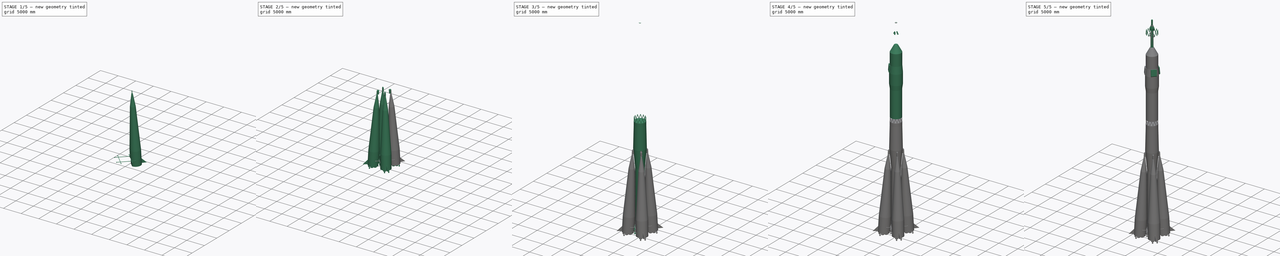
[diagram: build sequence overview — one tinted view per stage of 5, left to right]
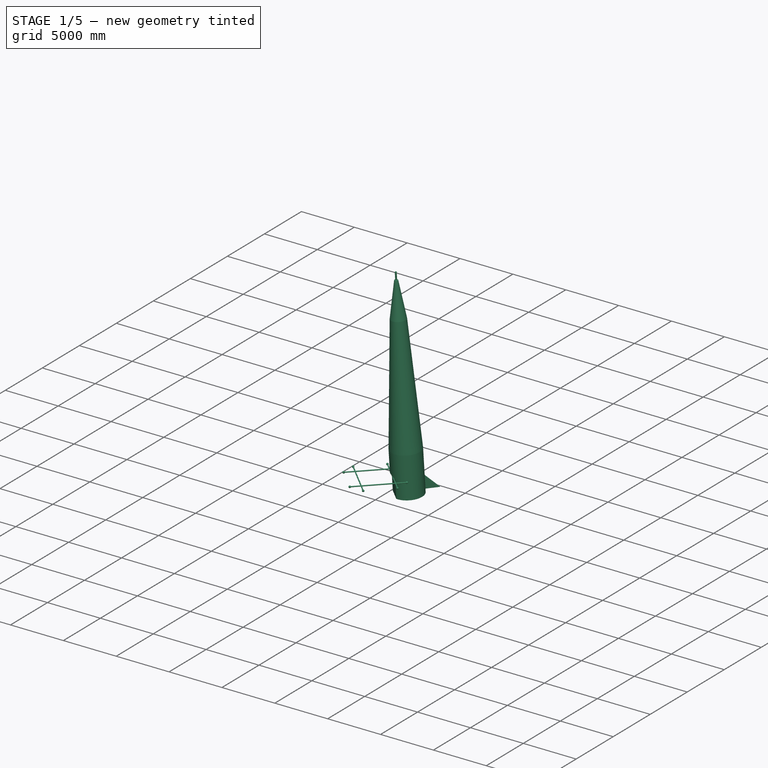
[diagram: stage 1 of 5 — iso view after this stage's code; geometry added in this stage tinted green]
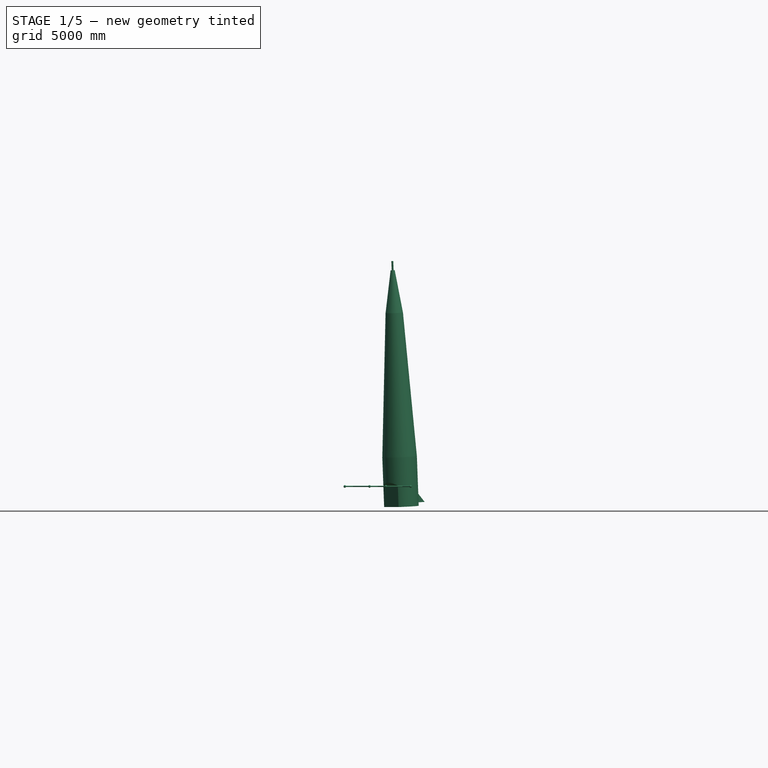
[diagram: stage 1 of 5 — front view after this stage's code; geometry added in this stage tinted green]
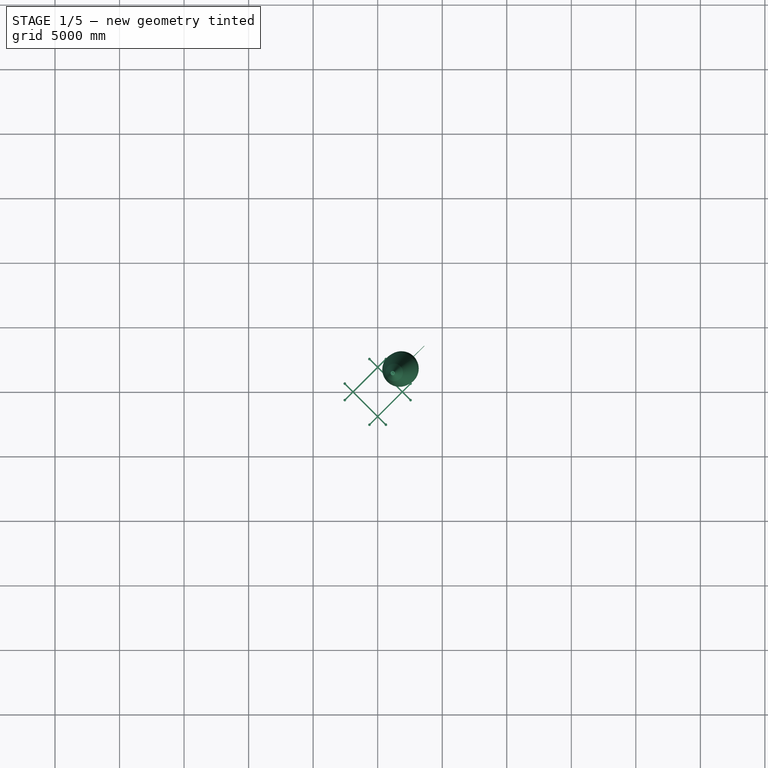
[diagram: stage 1 of 5 — top view after this stage's code; geometry added in this stage tinted green]
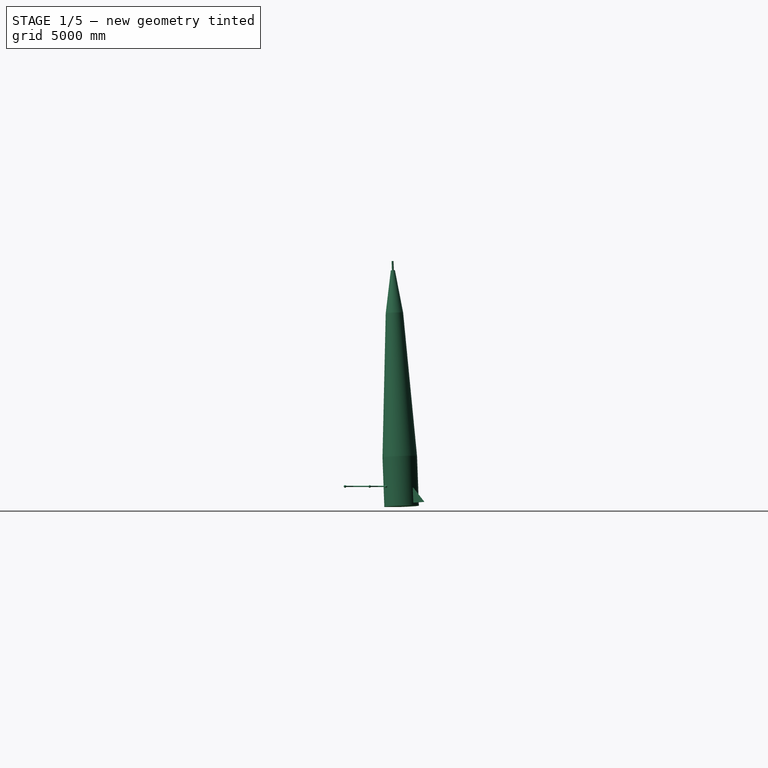
[diagram: stage 1 of 5 — right view after this stage's code; geometry added in this stage tinted green]
FCSTD DOCUMENT  (FreeCAD 0.19R23578 (Git))
Label: SOYUZ
License: All rights reserved
LicenseURL: http://en.wikipedia.org/wiki/All_rights_reserved
objects: Part::Cylinder×18, Part::Feature×15, Part::Cone×12, Part::MultiFuse×11, Part::FeaturePython×9, Part::Compound×8, Part::Fillet×6, Part::Chamfer×5, Part::Sphere×5, Part::Box×4, Part::RegularPolygon×2, PartDesign::ShapeBinder×2, Part::Plane×2, Part::Cut×2, Image::ImagePlane×1, Part::Part2DObjectPython×1, PartDesign::Plane×1, Sketcher::SketchObject×1, PartDesign::AdditivePipe×1, PartDesign::Body×1, +3 more types
note: 110 computed .brp shape members not serialized (recipe doc carries the construction recipe); baked Part::Feature solids carry a one-line shape summary decoded from their .brp

FEATURE [Part::Cylinder] Cylinder013
  Angle = 360
  AttacherType = Attacher::AttachEngine3D
  Height = 3850
  Radius = 1340
FEATURE [Part::Cone] Cone010
  Angle = 360
  AttacherType = Attacher::AttachEngine3D
  Height = 11160
  Placement = pos=(-9.43e-13,0,3850) rot=(0,0,1;0rad)
  Radius1 = 1340
  Radius2 = 675
FEATURE [Part::Cone] Cone011
  Angle = 360
  AttacherType = Attacher::AttachEngine3D
  Height = 3300
  Placement = pos=(0,0,15010) rot=(0,0,1;0rad)
  Radius1 = 675
  Radius2 = 160
FEATURE [Part::Cylinder] Cylinder014
  Angle = 360
  AttacherType = Attacher::AttachEngine3D
  Height = 720
  Placement = pos=(0,0,18310) rot=(0,0,1;0rad)
  Radius = 75
FEATURE [Part::Box] Box001  label="Cube001"
  AttacherType = Attacher::AttachEngine3D
  Height = 1900
  Length = 260
  Placement = pos=(0,-800,0) rot=(0,0,1;0rad)
  Width = 1600
FEATURE [Part::Chamfer] Chamfer003
  Base = -> Box001
  Edges = 1 edges r=250: [Edge6]
  Placement = pos=(-1350,0,0) rot=(0,0,1;0rad)
FEATURE [Part::Fillet] Fillet004001001002
  Base = -> Cylinder014
  Edges = 1 edges r=25: [Edge1]
FEATURE [Part::Cut] Cut
  Base = -> Cylinder013
  Tool = -> Chamfer003
FEATURE [Part::MultiFuse] Fusion003003007
  Placement = pos=(1838.48,1838.48,-48240) rot=(0.026125,-0.063071,0.997667;0.787051rad)
  Shapes = -> [Cut,Fillet004001001002,Cone011,Cone010]
FEATURE [Part::Feature] Array003001
  Placement = pos=(1838.48,1838.48,-48200) rot=(0,0,1;0rad)
  shape: bbox 1780 x 1780 x 500 mm, 16 faces, 4 solids (baked)
FEATURE [Part::Feature] Fusion003003004001
  Placement = pos=(2885,2177.89,-48240) rot=(0,0,-1;0.785398rad)
  shape: bbox 300 x 300 x 750 mm, 5 faces (baked)
FEATURE [Part::Box] Box002  label="Cube002"
  AttacherType = Attacher::AttachEngine3D
  Height = 1170
  Length = 1170
  Placement = pos=(0,-40,0) rot=(0,0,1;0rad)
  Width = 40
FEATURE [Part::Chamfer] Chamfer004
  Base = -> Box002
  Edges = 1 edges r=1150: [Edge6]
  Placement = pos=(2769.04,2769.04,-47960.1) rot=(0.026125,-0.063071,0.997667;0.787051rad)
FEATURE [Part::Cylinder] Cylinder018
  Angle = 360
  AttacherType = Attacher::AttachEngine3D
  Height = 2250
  Placement = pos=(0,0,0) rot=(0,1,0;1.5708rad)
  Radius = 50
FEATURE [Part::Sphere] Sphere005
  Angle1 = -90
  Angle2 = 90
  Angle3 = 360
  AttacherType = Attacher::AttachEngine3D
  Placement = pos=(2250,0,0) rot=(0,0,1;0rad)
  Radius = 100
FEATURE [Part::MultiFuse] Fusion003003004001005
  Shapes = -> [Cylinder018,Sphere005]
FEATURE [Part::Feature] Fusion003003004001005001
  Placement = pos=(0,0,0) rot=(0,-1,0;3.14159rad)
  shape: bbox 2350 x 200 x 200 mm, 3 faces (baked)
FEATURE [Part::MultiFuse] Fusion003003004001005002
  Placement = pos=(954.594,-954.594,-46700) rot=(0,0,1;0.785398rad)
  Shapes = -> [Fusion003003004001005001,Fusion003003004001005]
FEATURE [Part::FeaturePython] Array003005  # Draft array (typed FeaturePython)
  Angle = 360
  ArrayType = 1
  Axis = (0,0,1)
  Base = -> Fusion003003004001005002
  Center = (0,0,1)
  Count = 4
  ExpandArray = false
  Fuse = true
  IntervalAxis = (0,0,0)
  IntervalX = (50,0,0)
  IntervalY = (0,50,0)
  IntervalZ = (0,0,50)
  NumberCircles = 3
  NumberPolar = 4
  NumberX = 2
  NumberY = 2
  NumberZ = 1
  PlacementList = 4 placements: [(954.594,-954.594,-46700),(954.594,954.594,-46700),(-954.594,954.594,-46700),(-954.594,-954.594,-46700)]
  RadialDistance = 50
  ScaleList = (4) [(1,1,1),(1,1,1),(1,1,1),(1,1,1)]
  Symmetry = 1
  TangentialDistance = 25
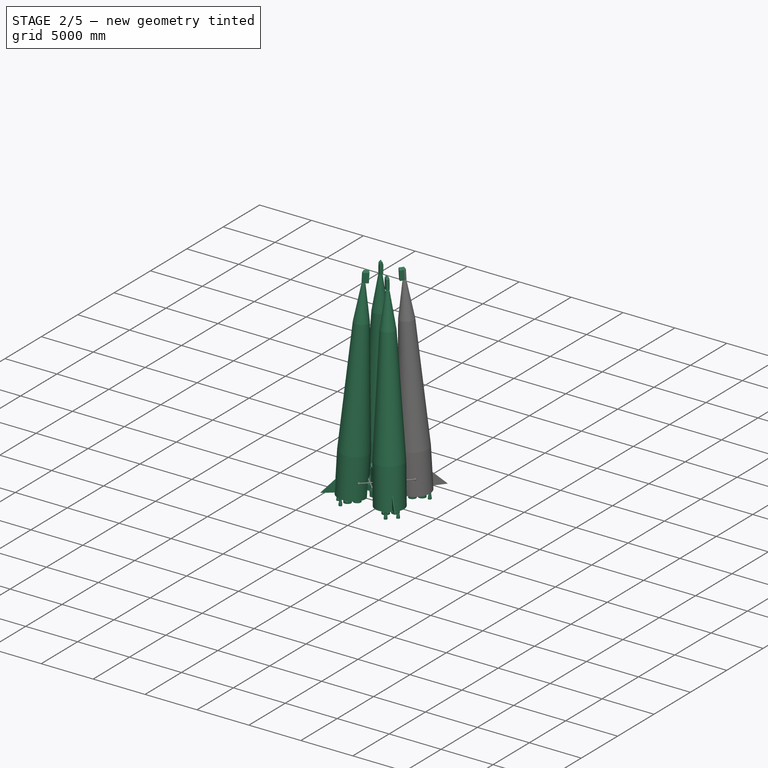
[diagram: stage 2 of 5 — iso view after this stage's code; geometry added in this stage tinted green]
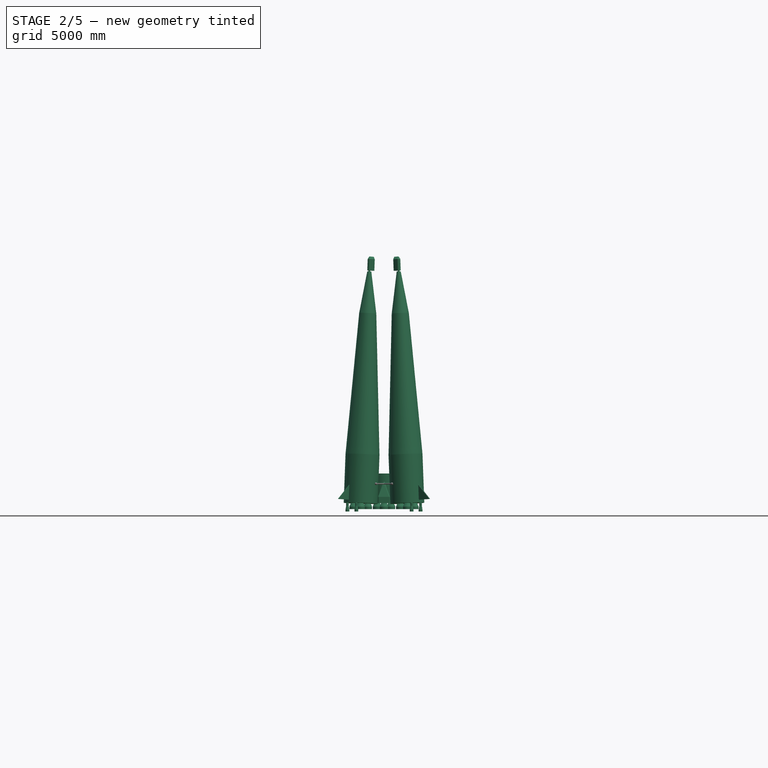
[diagram: stage 2 of 5 — front view after this stage's code; geometry added in this stage tinted green]
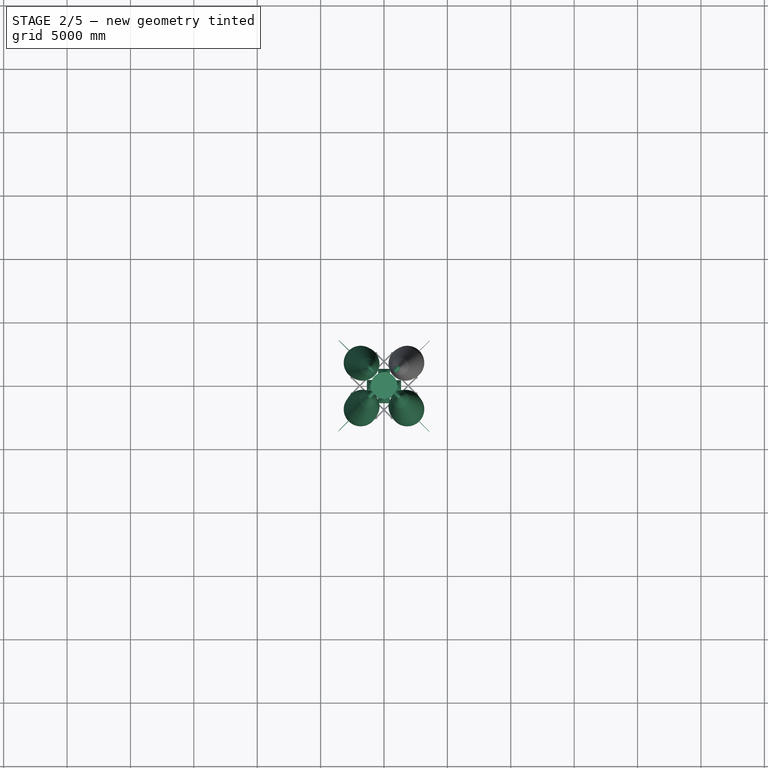
[diagram: stage 2 of 5 — top view after this stage's code; geometry added in this stage tinted green]
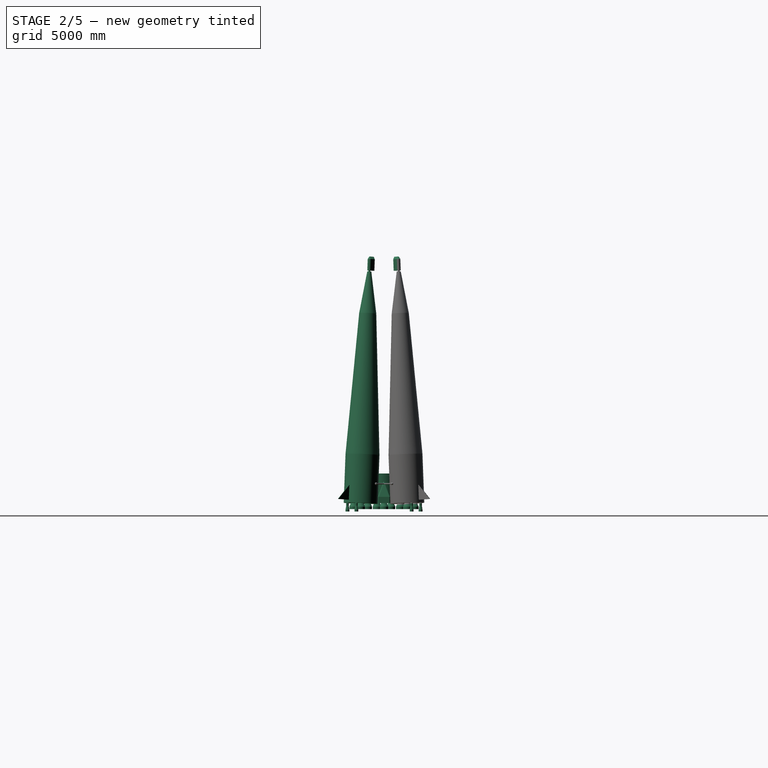
[diagram: stage 2 of 5 — right view after this stage's code; geometry added in this stage tinted green]
FEATURE [Part::Cylinder] Cylinder009
  Angle = 360
  AttacherType = Attacher::AttachEngine3D
  Height = 2350
  Placement = pos=(5.62e-12,0,-45890) rot=(0,1,0;3.14159rad)
  Radius = 1050
FEATURE [Part::Feature] Loft001
  shape: bbox 935 x 600 x 1700 mm, 12 faces (baked)
FEATURE [Part::Fillet] Fillet004
  Base = -> Loft001
  Edges = 4 edges r=50: [Edge2,Edge6,Edge16,Edge19]
  Placement = pos=(0,-1050,-48240) rot=(0,0,1;0rad)
FEATURE [Part::Feature] Fillet004001
  Placement = pos=(2.57e-13,1050,-48240) rot=(0,0,1;3.14159rad)
  shape: bbox 1092 x 763.3 x 1732 mm, 18 faces (baked)
FEATURE [Part::Feature] Fillet004001001
  Placement = pos=(-1050,2.33e-13,-48240) rot=(0,0,-1;1.5708rad)
  shape: bbox 763.3 x 1092 x 1732 mm, 18 faces (baked)
FEATURE [Part::Feature] Fillet004001001001
  Placement = pos=(1050,-2.331e-13,-48240) rot=(0,0,1;1.5708rad)
  shape: bbox 763.3 x 1092 x 1732 mm, 18 faces (baked)
FEATURE [Part::MultiFuse] Fusion003
  Shapes = -> [Fillet004001001001,Fillet004001001,Fillet004001,Fillet004,Cylinder009]
FEATURE [Part::Refine] Fusion003001
  Placement = pos=(0,0,0) rot=(0,0,1;0.785398rad)
  Source = -> Fusion003
FEATURE [Part::Cone] Cone007
  Angle = 360
  AttacherType = Attacher::AttachEngine3D
  Height = 300
  Placement = pos=(5.908e-12,0,0) rot=(0,1,0;3.14159rad)
  Radius1 = 220
  Radius2 = 340
FEATURE [Part::Cylinder] Cylinder010
  Angle = 360
  AttacherType = Attacher::AttachEngine3D
  Height = 200
  Placement = pos=(0,0,-500) rot=(0,0,1;0rad)
  Radius = 340
FEATURE [Part::MultiFuse] Fusion003003006
  Placement = pos=(-550,0,0) rot=(0,0,1;0rad)
  Shapes = -> [Cone007,Cylinder010]
FEATURE [Part::FeaturePython] Array003  label="Array005"  # Draft array (typed FeaturePython)
  Angle = 360
  ArrayType = 1
  Axis = (0,0,1)
  Base = -> Fusion003003006
  Center = (0,0,1)
  Count = 4
  ExpandArray = false
  Fuse = true
  IntervalAxis = (0,0,0)
  IntervalX = (50,0,0)
  IntervalY = (0,50,0)
  IntervalZ = (0,0,50)
  NumberCircles = 3
  NumberPolar = 4
  NumberX = 2
  NumberY = 2
  NumberZ = 1
  Placement = pos=(0,0,-48200) rot=(0,0,1;0rad)
  PlacementList = 4 placements: [(-550,0,0),(-1.13687e-13,-550,0),(550,-6.73556e-14,0),(1.13687e-13,550,0)]
  RadialDistance = 50
  ScaleList = (4) [(1,1,1),(1,1,1),(1,1,1),(1,1,1)]
  Symmetry = 1
  TangentialDistance = 25
FEATURE [Part::Feature] Fusion003003004001001
  Placement = pos=(2177.89,2885,-48240) rot=(0,0,-1;0.785398rad)
  shape: bbox 300 x 300 x 750 mm, 5 faces (baked)
FEATURE [Part::MultiFuse] Fusion003003004001002
  Shapes = -> [Fusion003003004001001,Chamfer004,Fusion003003004001,Array003001,Fusion003003007]
FEATURE [Part::Cylinder] Cylinder015
  Angle = 180
  AttacherType = Attacher::AttachEngine3D
  Height = 1100
  Placement = pos=(0,0,0) rot=(0,0,1;1.5708rad)
  Radius = 160
FEATURE [Part::Box] Box003  label="Cube003"
  AttacherType = Attacher::AttachEngine3D
  Height = 1100
  Length = 400
  Placement = pos=(0,-160,0) rot=(0,0,1;0rad)
  Width = 320
FEATURE [Part::MultiFuse] Fusion003003004001004
  Shapes = -> [Box003,Cylinder015]
FEATURE [Part::Chamfer] Chamfer005
  Base = -> Fusion003003004001004
  Edges = 1 edges: [Edge6 r1=200 r2=120]
FEATURE [Part::Cylinder] Cylinder016
  Angle = 360
  AttacherType = Attacher::AttachEngine3D
  Height = 900
  Radius = 76
FEATURE [Part::Cut] Cut001
  Base = -> Chamfer005
  Placement = pos=(1157.92,1157.92,-29875.2) rot=(-0.026175,-0.010842,0.999599;3.92671rad)
  Tool = -> Cylinder016
FEATURE [Part::FeaturePython] Array003003  # Draft array (typed FeaturePython)
  Angle = 360
  ArrayType = 1
  Axis = (0,0,1)
  Base = -> Cut001
  Center = (0,0,1)
  Count = 4
  ExpandArray = false
  Fuse = true
  IntervalAxis = (0,0,0)
  IntervalX = (50,0,0)
  IntervalY = (0,50,0)
  IntervalZ = (0,0,50)
  NumberCircles = 3
  NumberPolar = 4
  NumberX = 2
  NumberY = 2
  NumberZ = 1
  PlacementList = 4 placements: [(1157.92,1157.92,-29875.2),(-1157.92,1157.92,-29875.2),(-1157.92,-1157.92,-29875.2),(1157.92,-1157.92,-29875.2)]
  RadialDistance = 50
  ScaleList = (4) [(1,1,1),(1,1,1),(1,1,1),(1,1,1)]
  Symmetry = 1
  TangentialDistance = 25
FEATURE [Part::FeaturePython] Array003004  # Draft array (typed FeaturePython)
  Angle = 360
  ArrayType = 1
  Axis = (0,0,1)
  Base = -> Fusion003003004001002
  Center = (0,0,1)
  Count = 4
  ExpandArray = false
  Fuse = true
  IntervalAxis = (0,0,0)
  IntervalX = (50,0,0)
  IntervalY = (0,50,0)
  IntervalZ = (0,0,50)
  NumberCircles = 3
  NumberPolar = 4
  NumberX = 2
  NumberY = 2
  NumberZ = 1
  PlacementList = 4 placements: [(0,0,0),(0,0,0),(0,0,0),(0,0,0)]
  RadialDistance = 50
  ScaleList = (4) [(1,1,1),(1,1,1),(1,1,1),(1,1,1)]
  Symmetry = 1
  TangentialDistance = 25
FEATURE [Part::Compound] Compound009  label="MODULE 3"
  Links = -> [Array003004,Array003005]
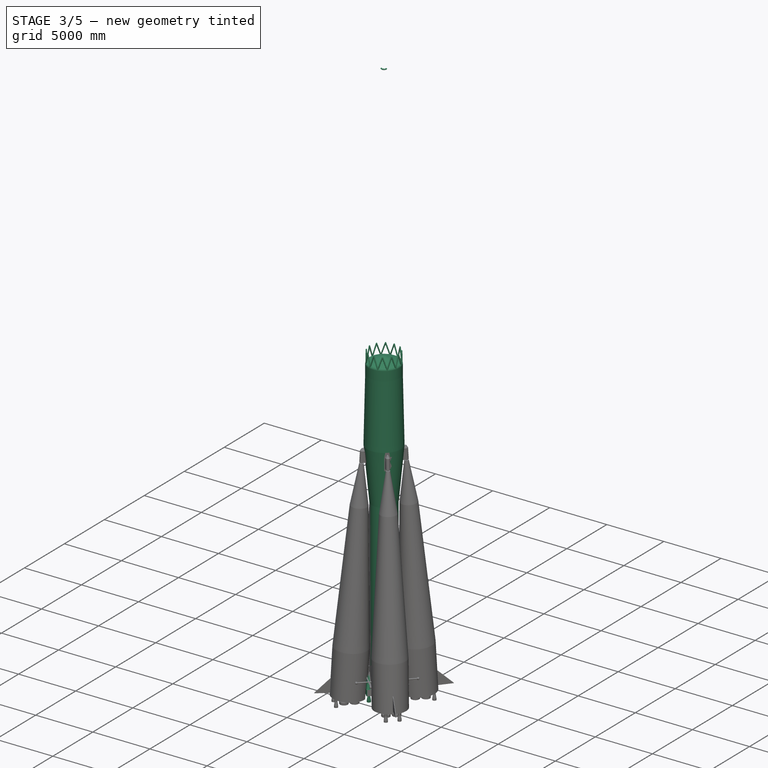
[diagram: stage 3 of 5 — iso view after this stage's code; geometry added in this stage tinted green]
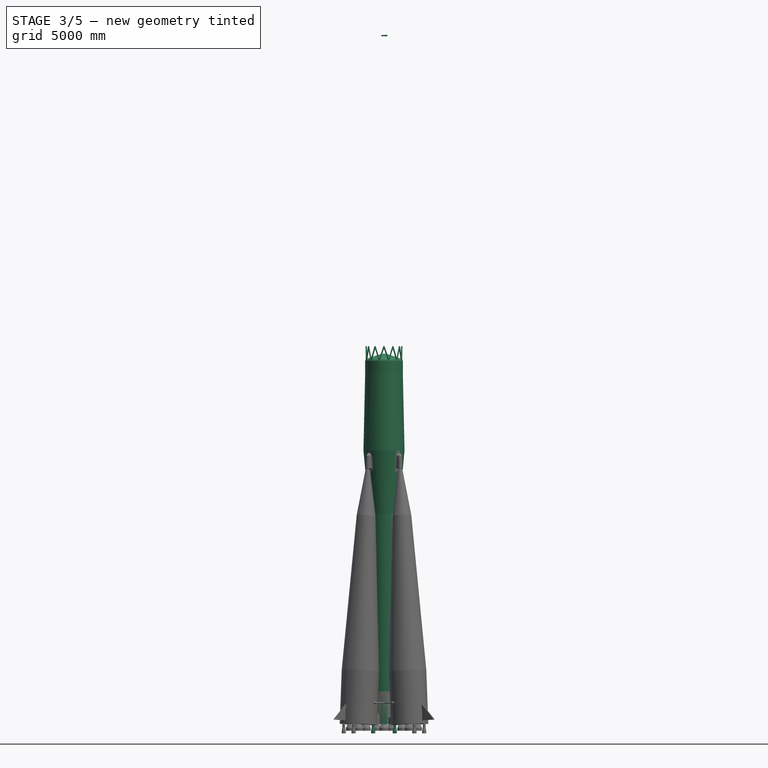
[diagram: stage 3 of 5 — front view after this stage's code; geometry added in this stage tinted green]
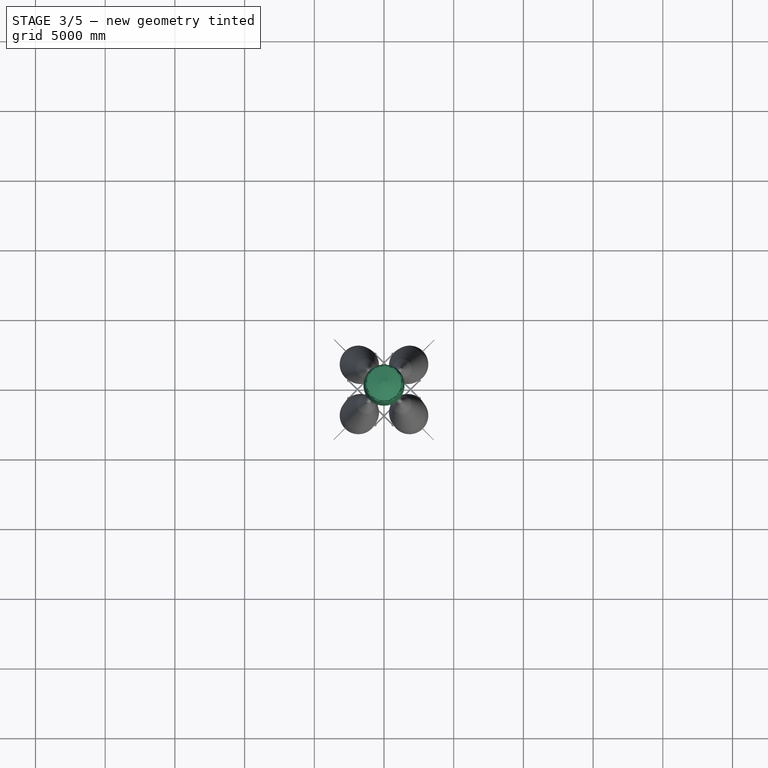
[diagram: stage 3 of 5 — top view after this stage's code; geometry added in this stage tinted green]
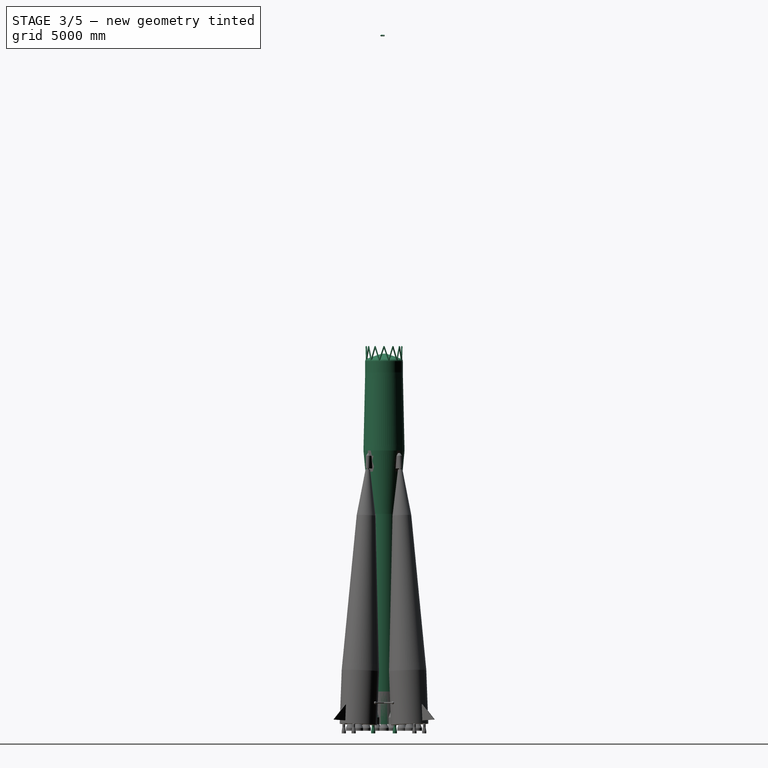
[diagram: stage 3 of 5 — right view after this stage's code; geometry added in this stage tinted green]
FEATURE [PartDesign::Body] Body
  Group = -> [DatumPlane,CopyWire,Sketch,AdditivePipe,CopyWire001]
  Origin = -> Origin
  Tip = -> AdditivePipe
FEATURE [Part::Feature] AdditivePipe001
  Placement = pos=(-650,-1125.83,-975) rot=(-0.580437,0.803057,0.134877;3.33595rad)
  shape: bbox 2700 x 2700 x 1075 mm, 72 faces (baked)
FEATURE [Part::Sphere] Sphere001
  Angle1 = -90
  Angle2 = 90
  Angle3 = 360
  AttacherType = Attacher::AttachEngine3D
  Radius = 5
FEATURE [Part::Compound] Compound004
  Links = -> [AdditivePipe001,Sphere001]
  Placement = pos=(0,0,-21150) rot=(0,0,-1;0.261799rad)
FEATURE [Part::Cylinder] Cylinder006
  Angle = 360
  AttacherType = Attacher::AttachEngine3D
  Height = 1350
  Placement = pos=(2.964e-12,0,0) rot=(0,0,1;0rad)
  Radius = 1350
FEATURE [Part::Chamfer] Chamfer002
  Base = -> Cylinder006
  Edges = 1 edges: [Edge1 r1=400 r2=1200]
FEATURE [Part::Fillet] Fillet003
  Base = -> Chamfer002
  Edges = 2 edges r=200: [Edge2,Edge5]
  Placement = pos=(0,0,-23000) rot=(0,0,1;0rad)
FEATURE [Part::Cone] Cone005
  Angle = 360
  AttacherType = Attacher::AttachEngine3D
  Height = 5600
  Placement = pos=(2.817e-12,0,-23000) rot=(0,1,0;3.14159rad)
  Radius1 = 1350
  Radius2 = 1475
FEATURE [Part::Cone] Cone006
  Angle = 360
  AttacherType = Attacher::AttachEngine3D
  Height = 4550
  Placement = pos=(-3.67e-13,0,-28600) rot=(0,1,0;3.14159rad)
  Radius1 = 1475
  Radius2 = 1050
FEATURE [Part::Cylinder] Cylinder007
  Angle = 360
  AttacherType = Attacher::AttachEngine3D
  Height = 10370
  Placement = pos=(4.06e-12,0,-33150) rot=(0,1,0;3.14159rad)
  Radius = 1050
FEATURE [Part::Cylinder] Cylinder008
  Angle = 360
  AttacherType = Attacher::AttachEngine3D
  Height = 2370
  Placement = pos=(5.33e-12,0,-43520) rot=(0,1,0;3.14159rad)
  Radius = 1050
FEATURE [Part::Feature] Fusion003003001
  Placement = pos=(-777.817,-777.817,-48240) rot=(0,0,1;3.92699rad)
  shape: bbox 300 x 300 x 750 mm, 5 faces (baked)
FEATURE [Part::Feature] Fusion003003002
  Placement = pos=(-777.817,777.817,-48240) rot=(0,0,1;0.785398rad)
  shape: bbox 300 x 300 x 750 mm, 5 faces (baked)
FEATURE [Part::Feature] Fusion003003003
  Placement = pos=(777.817,777.817,-48240) rot=(0,0,1;0.785398rad)
  shape: bbox 300 x 300 x 750 mm, 5 faces (baked)
FEATURE [Part::Feature] Fusion003003004
  Placement = pos=(777.817,-777.817,-48240) rot=(0,0,-1;0.785398rad)
  shape: bbox 300 x 300 x 750 mm, 5 faces (baked)
FEATURE [Part::Sphere] Sphere003
  Angle1 = -90
  Angle2 = 90
  Angle3 = 360
  AttacherType = Attacher::AttachEngine3D
  Radius = 30
FEATURE [Part::Cone] Cone009
  Angle = 360
  AttacherType = Attacher::AttachEngine3D
  Height = 80
  Placement = pos=(0,0,0) rot=(0,1,0;3.14159rad)
  Radius1 = 30
  Radius2 = 50
FEATURE [Part::MultiFuse] Fusion003003005
  Placement = pos=(-185,0,0) rot=(0,1,0;0.785398rad)
  Shapes = -> [Sphere003,Cone009]
FEATURE [Part::FeaturePython] Array002  # Draft array (typed FeaturePython)
  Angle = 130
  ArrayType = 1
  Axis = (0,0,1)
  Base = -> Fusion003003005
  Center = (0,0,0)
  Count = 6
  ExpandArray = false
  Fuse = true
  IntervalAxis = (0,0,0)
  IntervalX = (50,0,0)
  IntervalY = (0,50,0)
  IntervalZ = (0,0,50)
  NumberCircles = 3
  NumberPolar = 6
  NumberX = 2
  NumberY = 2
  NumberZ = 1
  Placement = pos=(0,0,1200) rot=(0,0,1;0.855211rad)
  PlacementList = 6 placements: [(-185,0,0),(-166.277,-81.0987,0),(-113.897,-145.782,0),(-38.4637,-180.957,0),(44.7556,-179.505,0),(118.916,-141.718,0)]
  RadialDistance = 50
  ScaleList = (6) [(1,1,1),(1,1,1),(1,1,1),(1,1,1),(1,1,1),(1,1,1)]
  Symmetry = 1
  TangentialDistance = 25
FEATURE [Part::FeaturePython] Clone001  label="Array004"  # Draft clone (typed FeaturePython)
  AttacherType = Attacher::AttachEngine3D
  Fuse = false
  Objects = -> [Array002]
  Placement = pos=(0,0,1200) rot=(0,0,1;0.855211rad)
  Scale = (1,1,1)
FEATURE [Part::Compound] Compound007
  Links = -> [Array003,Fusion003003004,Fusion003003003,Fusion003003002,Fusion003003001,Fusion003001,Cylinder008,Cylinder007,Cone006,Cone005,Fillet003,Compound004]
FEATURE [Part::Compound] Compound008  label="MODULE 2"
  Links = -> [Compound007,Array003003]
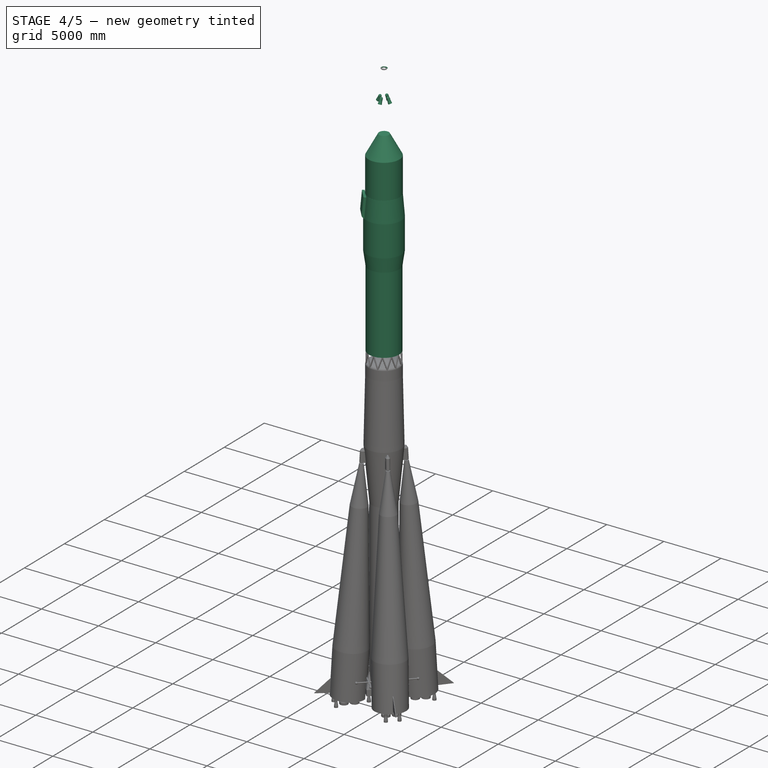
[diagram: stage 4 of 5 — iso view after this stage's code; geometry added in this stage tinted green]
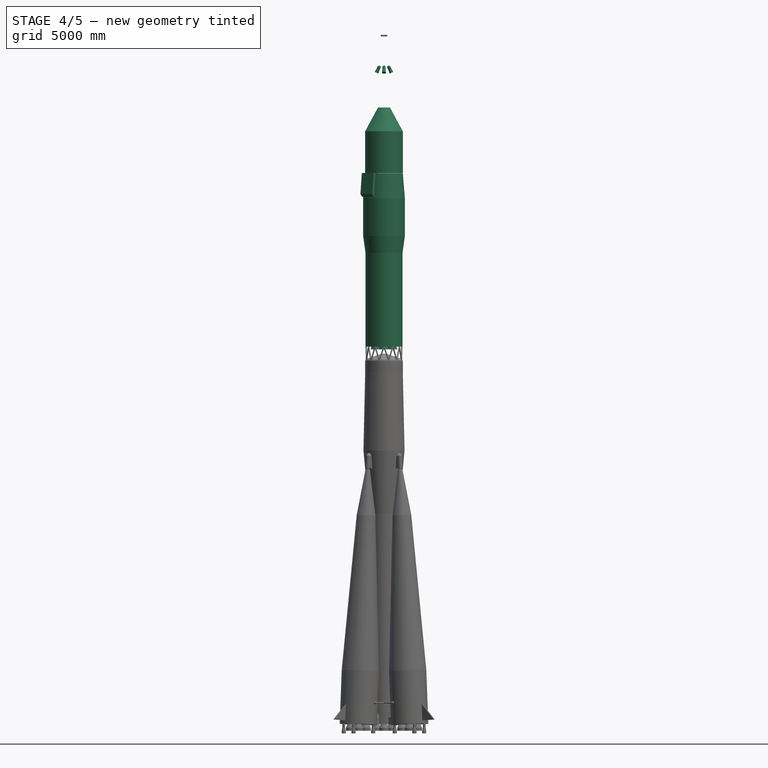
[diagram: stage 4 of 5 — front view after this stage's code; geometry added in this stage tinted green]
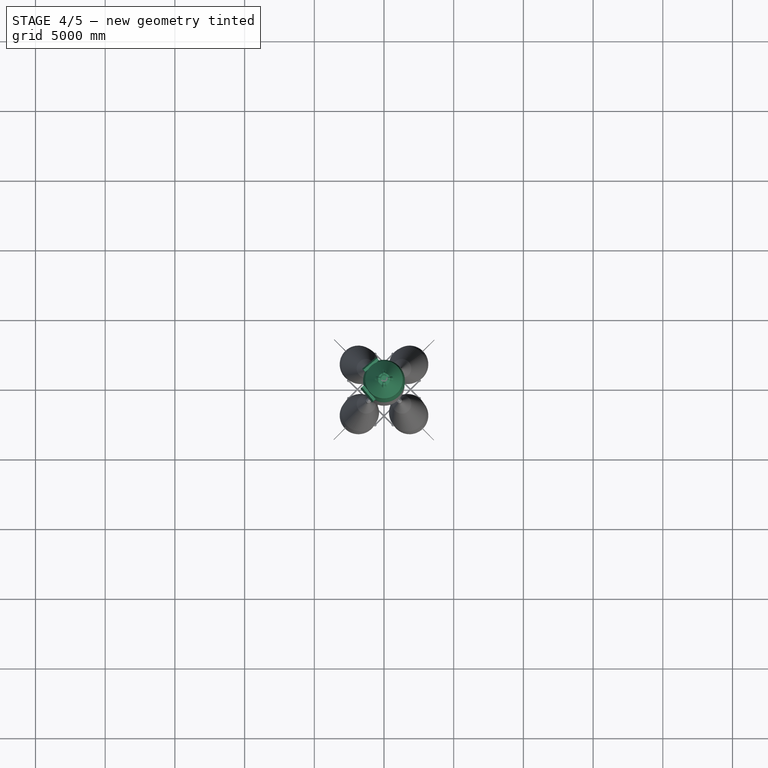
[diagram: stage 4 of 5 — top view after this stage's code; geometry added in this stage tinted green]
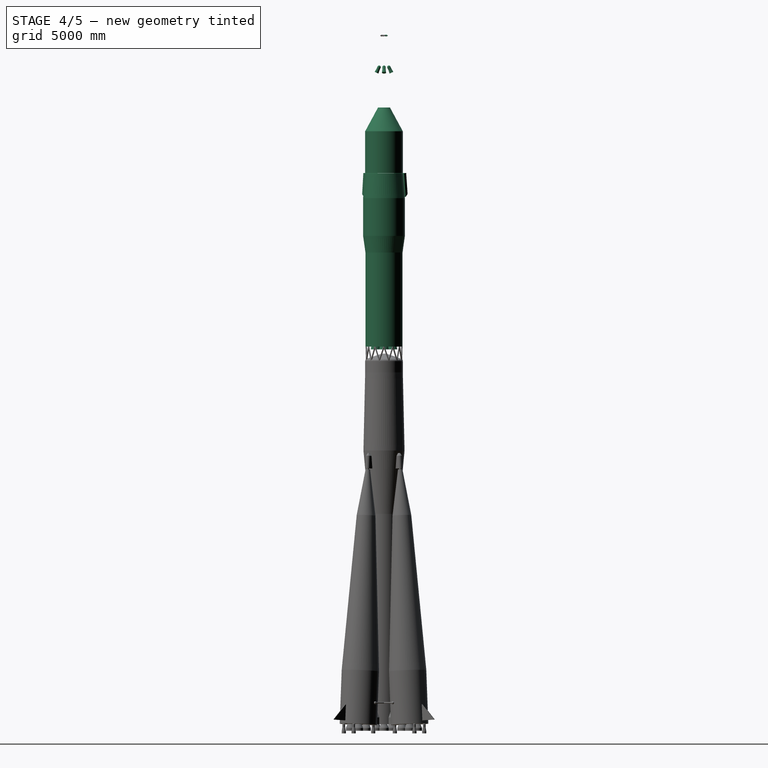
[diagram: stage 4 of 5 — right view after this stage's code; geometry added in this stage tinted green]
FEATURE [Part::Cone] Cone
  Angle = 360
  AttacherType = Attacher::AttachEngine3D
  Height = 1700
  Placement = pos=(4.9e-13,0,-3999) rot=(0,1,0;3.14159rad)
  Radius1 = 430
  Radius2 = 1350
FEATURE [Part::Cylinder] Cylinder002
  Angle = 360
  AttacherType = Attacher::AttachEngine3D
  Height = 3000
  Placement = pos=(6.98e-13,0,-5698) rot=(0,1,0;3.14159rad)
  Radius = 1350
FEATURE [Part::Cone] Cone001
  Angle = 360
  AttacherType = Attacher::AttachEngine3D
  Height = 1800
  Placement = pos=(1.065e-12,0,-8700) rot=(0,1,0;3.14159rad)
  Radius1 = 1350
  Radius2 = 1500
FEATURE [Part::Cylinder] Cylinder003
  Angle = 360
  AttacherType = Attacher::AttachEngine3D
  Height = 2700
  Placement = pos=(1.286e-12,0,-10500) rot=(0,1,0;3.14159rad)
  Radius = 1500
FEATURE [Part::Cone] Cone002
  Angle = 360
  AttacherType = Attacher::AttachEngine3D
  Height = 1200
  Placement = pos=(0,0,-14400) rot=(0,0,1;0rad)
  Radius1 = 1330
  Radius2 = 1500
FEATURE [Part::Cylinder] Cylinder004
  Angle = 360
  AttacherType = Attacher::AttachEngine3D
  Height = 6745
  Placement = pos=(-8.21e-13,0,-14400) rot=(0,1,0;3.14159rad)
  Radius = 1330
FEATURE [Part::Cone] Cone003
  Angle = 360
  AttacherType = Attacher::AttachEngine3D
  Height = 250
  Placement = pos=(-600,0,-21100) rot=(0,1,0;3.14159rad)
  Radius1 = 300
  Radius2 = 350
FEATURE [Part::FeaturePython] Array  # Draft array (typed FeaturePython)
  Angle = 360
  ArrayType = 1
  Axis = (0,0,1)
  Base = -> Cone003
  Center = (0,0,1)
  Count = 4
  ExpandArray = false
  Fuse = true
  IntervalAxis = (0,0,0)
  IntervalX = (50,0,0)
  IntervalY = (0,50,0)
  IntervalZ = (0,0,50)
  NumberCircles = 3
  NumberPolar = 4
  NumberX = 2
  NumberY = 2
  NumberZ = 1
  PlacementList = 4 placements: [(-600,0,-21100),(-1.13687e-13,-600,-21100),(600,-7.34788e-14,-21100),(1.13687e-13,600,-21100)]
  RadialDistance = 50
  ScaleList = (4) [(1,1,1),(1,1,1),(1,1,1),(1,1,1)]
  Symmetry = 1
  TangentialDistance = 25
FEATURE [Part::Box] Box  label="Cube"
  AttacherType = Attacher::AttachEngine3D
  Height = 200
  Length = 1700
  Placement = pos=(-1479.78,-650,-10405.6) rot=(0,-1,0;1.48353rad)
  Width = 1300
FEATURE [Part::Chamfer] Chamfer
  Base = -> Box
  Edges = 1 edges r=190: [Edge2]
  Placement = pos=(0,0,0) rot=(0,0,1;0.785398rad)
FEATURE [Part::Feature] Chamfer001
  Placement = pos=(0,0,0) rot=(0,0,-1;0.785398rad)
  shape: bbox 1153 x 1153 x 1711 mm, 7 faces (baked)
FEATURE [Part::Compound] Compound
  Links = -> [Chamfer,Chamfer001]
  Placement = pos=(0,0,0) rot=(0,0,-1;0.087266rad)
FEATURE [Part::Sphere] Sphere
  Angle1 = -90
  Angle2 = 90
  Angle3 = 360
  AttacherType = Attacher::AttachEngine3D
  Radius = 120
FEATURE [Part::Cone] Cone004
  Angle = 360
  AttacherType = Attacher::AttachEngine3D
  Height = 240
  Placement = pos=(1.84e-13,0,-200) rot=(0,1,0;3.14159rad)
  Radius1 = 120
  Radius2 = 150
FEATURE [Part::Cylinder] Cylinder005
  Angle = 360
  AttacherType = Attacher::AttachEngine3D
  Height = 200
  Placement = pos=(1.35e-13,0,0) rot=(0,1,0;3.14159rad)
  Radius = 120
FEATURE [Part::MultiFuse] Fusion002
  Placement = pos=(-350,0,-1100) rot=(0,1,0;0.436332rad)
  Shapes = -> [Cylinder005,Cone004,Sphere]
FEATURE [Part::FeaturePython] Array001  # Draft array (typed FeaturePython)
  Angle = 360
  ArrayType = 1
  Axis = (0,0,1)
  Base = -> Fusion002
  Center = (0,0,1)
  Count = 4
  ExpandArray = false
  Fuse = true
  IntervalAxis = (0,0,0)
  IntervalX = (50,0,0)
  IntervalY = (0,50,0)
  IntervalZ = (0,0,50)
  NumberCircles = 3
  NumberPolar = 4
  NumberX = 2
  NumberY = 2
  NumberZ = 1
  PlacementList = 4 placements: [(-350,0,-1100),(-5.68434e-14,-350,-1100),(350,-4.28626e-14,-1100),(5.68434e-14,350,-1100)]
  RadialDistance = 50
  ScaleList = (4) [(1,1,1),(1,1,1),(1,1,1),(1,1,1)]
  Symmetry = 1
  TangentialDistance = 25
FEATURE [Part::FeaturePython] Clone  label="Array003"  # Draft clone (typed FeaturePython)
  AttacherType = Attacher::AttachEngine3D
  Fuse = false
  Objects = -> [Array002]
  Placement = pos=(0,0,1200) rot=(0,0,1;4.01426rad)
  Scale = (1,1,1)
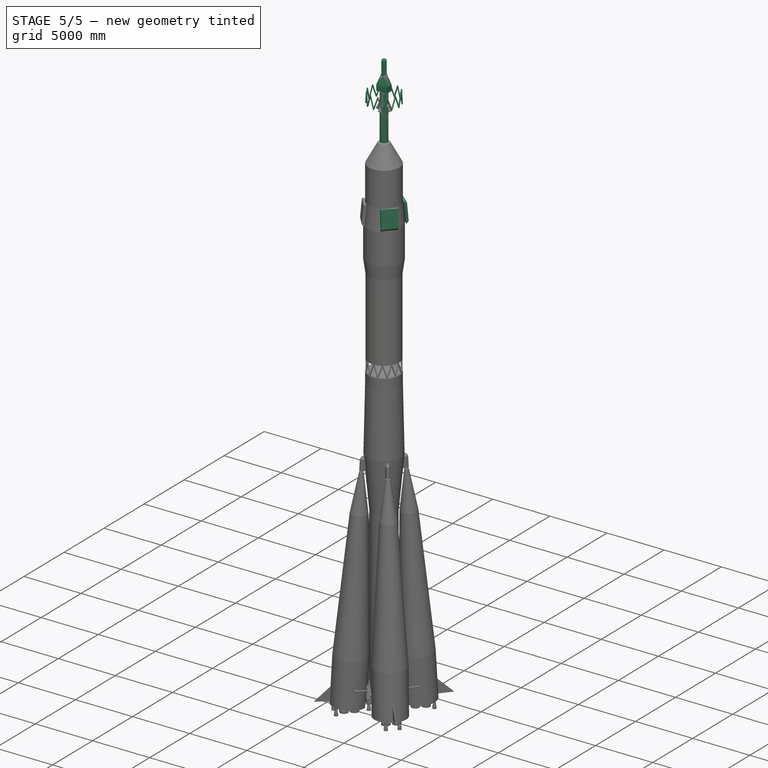
[diagram: stage 5 of 5 — iso view after this stage's code; geometry added in this stage tinted green]
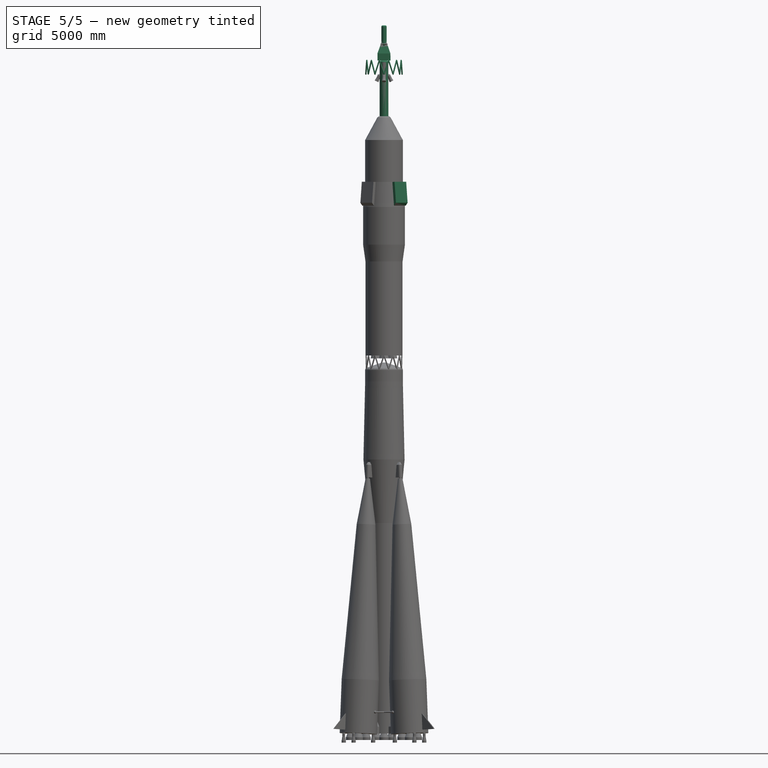
[diagram: stage 5 of 5 — front view after this stage's code; geometry added in this stage tinted green]
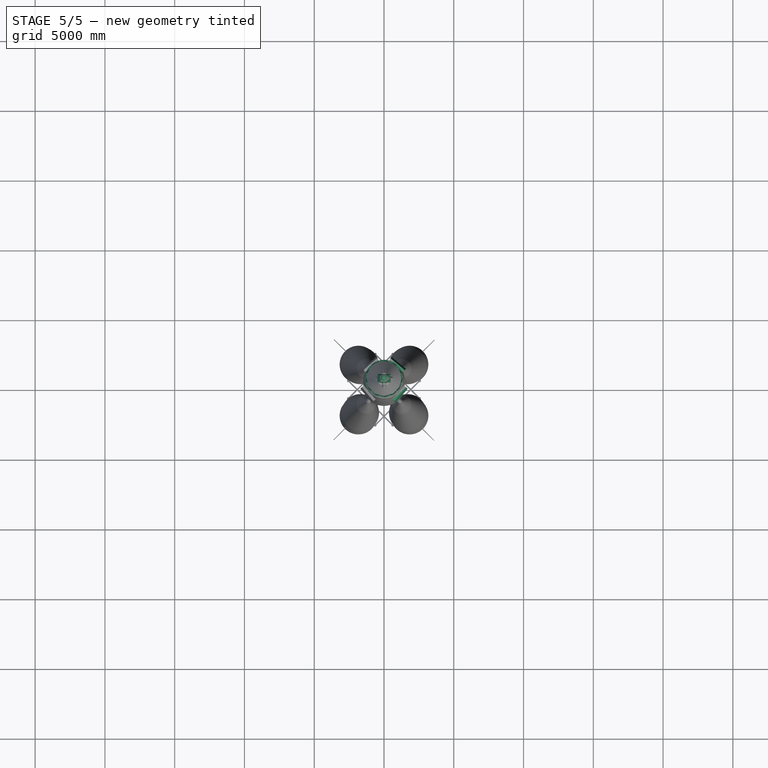
[diagram: stage 5 of 5 — top view after this stage's code; geometry added in this stage tinted green]
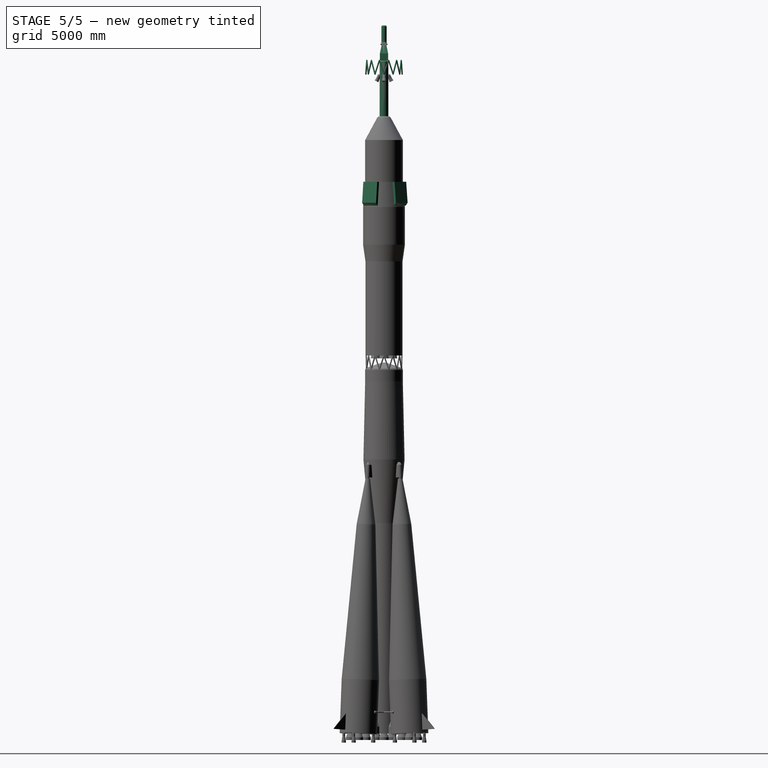
[diagram: stage 5 of 5 — right view after this stage's code; geometry added in this stage tinted green]
FEATURE [Image::ImagePlane] ImagePlane
  Placement = pos=(12200,0,-23650) rot=(-1,0,0;4.71239rad)
  XSize = 38548.5
  YSize = 55690.6
FEATURE [Part::Cylinder] Cylinder
  Angle = 360
  AttacherType = Attacher::AttachEngine3D
  Height = 2515
  Radius = 185
FEATURE [Part::Fillet] Fillet
  Base = -> Cylinder
  Edges = 1 edges r=100: [Edge1]
FEATURE [Part::Cylinder] Cylinder001
  Angle = 360
  AttacherType = Attacher::AttachEngine3D
  Height = 4000
  Placement = pos=(0,0,0) rot=(0,1,0;3.14159rad)
  Radius = 310
FEATURE [Part::Fillet] Fillet001
  Base = -> Cylinder001
  Edges = 1 edges r=130: [Edge3]
FEATURE [Part::MultiFuse] Fusion
  Shapes = -> [Fillet,Fillet001,Cone]
FEATURE [Part::Fillet] Fillet002
  Base = -> Fusion
  Edges = 1 edges r=200: [Edge3]
FEATURE [Part::MultiFuse] Fusion001
  Shapes = -> [Array,Cylinder004,Cone002,Cylinder003,Cone001,Cylinder002,Fillet002]
FEATURE [Part::Feature] Compound001
  Placement = pos=(0,0,0) rot=(0,0,1;3.22886rad)
  shape: bbox 1333 x 3258 x 1711 mm, 14 faces, 2 solids (baked)
FEATURE [Part::Compound] Compound002
  Links = -> [Compound001,Compound,Fusion001]
FEATURE [Part::Compound] Compound003
  Links = -> [Array001,Compound002]
FEATURE [Part::RegularPolygon] RegularPolygon  label="Regular polygon"
  AttacherType = Attacher::AttachEngine3D
  Circumradius = 1275
  Placement = pos=(0,0,0) rot=(0,0,1;0.261799rad)
  Polygon = 12
FEATURE [Part::RegularPolygon] RegularPolygon001  label="Regular polygon001"
  AttacherType = Attacher::AttachEngine3D
  Circumradius = 1300
  Placement = pos=(0,0,-975) rot=(0,0,1;0rad)
  Polygon = 12
FEATURE [Part::Part2DObjectPython] Wire  # Draft 2D object (typed FeaturePython)
  Area = 0
  ChamferSize = 0
  Closed = true
  End = (-329.994,-1231.56,1.0232e-12)
  FilletRadius = 0
  Length = 24758.5
  MakeFace = true
  Placement = pos=(-1.251e-12,-1300,-975) rot=(0.742906,0.307722,0.594473;1.21712rad)
  Points = (24) [(0,0,0),(281.738,689.307,713.922),(582.774,-194.258,274.722),(919.238,590.686,853.395),(1255.7,-194.258,274.723),(1556.74,689.307,713.923),+18 more]
  Start = (-1.251e-12,-1300,-975)
  Subdivisions = 0
FEATURE [PartDesign::ShapeBinder] CopyWire
  Placement = pos=(-1.251e-12,-1300,-975) rot=(0.742906,0.307722,0.594473;1.21712rad)
  TraceSupport = false
FEATURE [PartDesign::Plane] DatumPlane
  Length = 1379.21
  MapMode = 7
  Placement = pos=(-650,-1125.83,-975) rot=(-0.580437,0.803057,0.134877;3.33595rad)
  ResizeMode = 0
  Support = -> [CopyWire]
  Width = 181.736
FEATURE [Sketcher::SketchObject] Sketch
  MapMode = 5
  Placement = pos=(-650,-1125.83,-975) rot=(-0.580437,0.803057,0.134877;3.33595rad)
  Support = -> [DatumPlane]
  sketch-geometry (1):
    g0: Circle CenterX=0 CenterY=0 CenterZ=0 NormalX=0 NormalY=0 NormalZ=1 AngleXU=0 Radius=50
  constraints (2):
    c: Coincident(g0,g-1)
    c: Radius(g0) = 50
FEATURE [PartDesign::ShapeBinder] CopyWire001
  Placement = pos=(-1.251e-12,-1300,-975) rot=(0.742906,0.307722,0.594473;1.21712rad)
  TraceSupport = false
FEATURE [PartDesign::AdditivePipe] AdditivePipe
  AuxilleryCurvelinear = true
  AuxillerySpineTangent = false
  Binormal = (0,0,0)
  Mode = 0
  Placement = pos=(-650,-1125.83,-975) rot=(-0.580437,0.803057,0.134877;3.33595rad)
  Profile = -> Sketch
  Spine = -> CopyWire001
  SpineTangent = false
  Transformation = 0
  Transition = 2
FEATURE [Part::Plane] Plane
  AttacherType = Attacher::AttachEngine3D
  Length = 930
  Placement = pos=(-465,-300,0) rot=(0,0,1;0rad)
  Width = 600
FEATURE [Part::Plane] Plane001
  AttacherType = Attacher::AttachEngine3D
  Length = 930
  Placement = pos=(-470,-300,500) rot=(0,0,1;0rad)
  Width = 600
FEATURE [Part::Circle] Circle
  Angle0 = 0
  Angle1 = 360
  AttacherType = Attacher::AttachEngine3D
  Placement = pos=(0,0,1700) rot=(0,0,1;0rad)
  Radius = 50
FEATURE [Part::Loft] Loft
  Closed = false
  MaxDegree = 5
  Ruled = true
  Sections = -> [Plane,Plane001,Circle]
  Solid = true
FEATURE [Part::Sphere] Sphere002
  Angle1 = -90
  Angle2 = 90
  Angle3 = 360
  AttacherType = Attacher::AttachEngine3D
  Radius = 100
FEATURE [Part::Cylinder] Cylinder011
  Angle = 360
  AttacherType = Attacher::AttachEngine3D
  Height = 200
  Placement = pos=(0,0,0) rot=(0,1,0;3.14159rad)
  Radius = 100
FEATURE [Part::Cone] Cone008
  Angle = 360
  AttacherType = Attacher::AttachEngine3D
  Height = 300
  Placement = pos=(2.4e-14,0,-200) rot=(0,1,0;3.14159rad)
  Radius1 = 100
  Radius2 = 150
FEATURE [Part::Cylinder] Cylinder012
  Angle = 360
  AttacherType = Attacher::AttachEngine3D
  Height = 150
  Placement = pos=(6.1e-14,0,-500) rot=(0,1,0;3.14159rad)
  Radius = 150
FEATURE [Part::Compound] Compound006  label="MODULE 1"
  Links = -> [Compound003,Clone,Clone001]
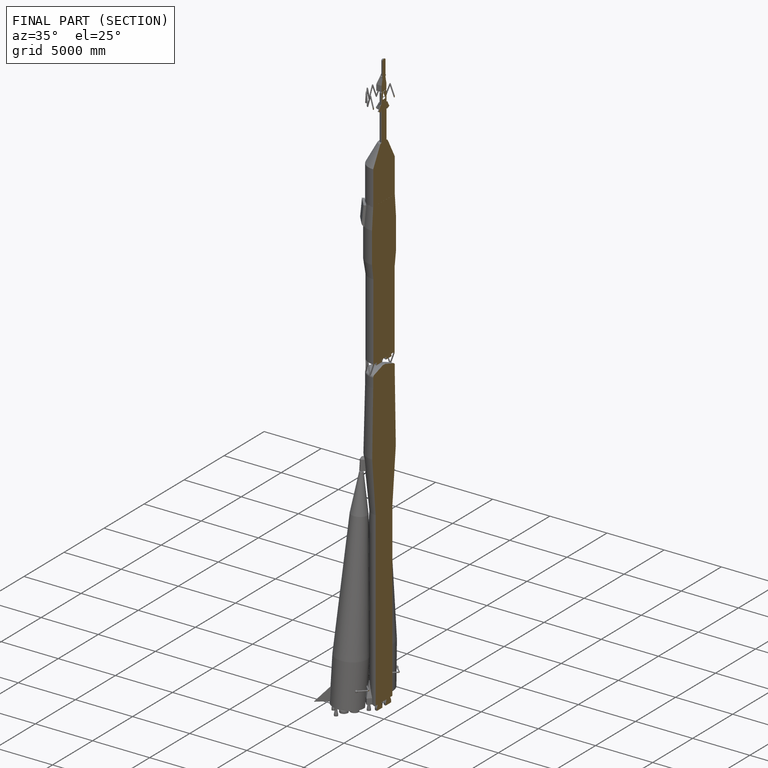
[diagram: finished part — half-section view (interior)]
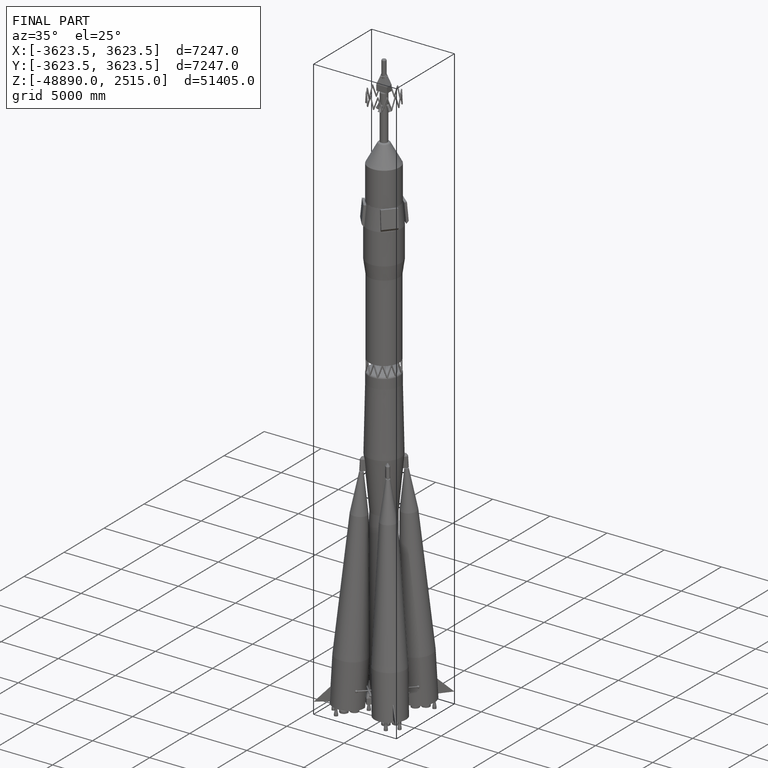
[diagram: finished part — iso view with bounding-box wireframe]
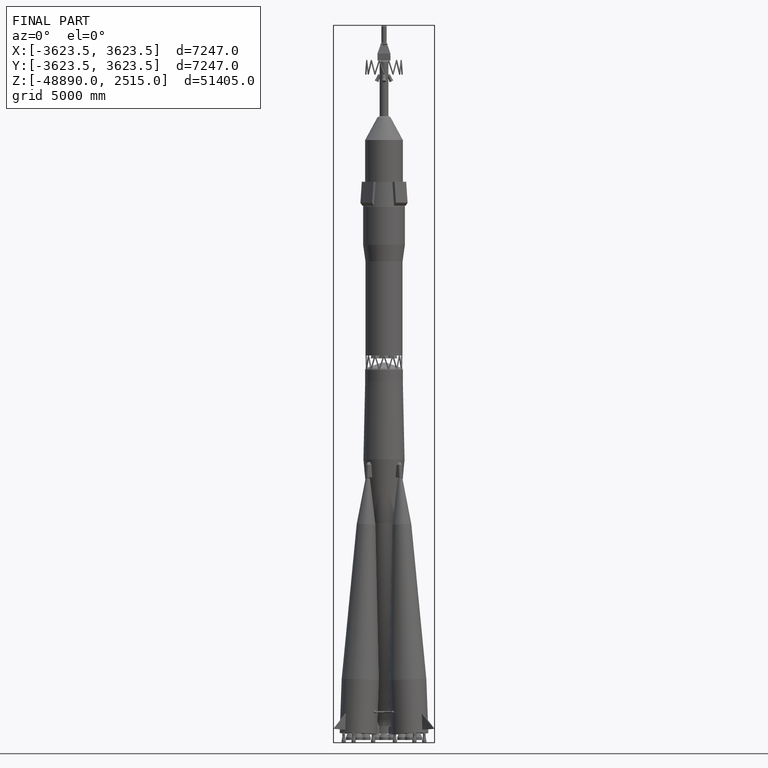
[diagram: finished part — front view with bounding-box wireframe]
